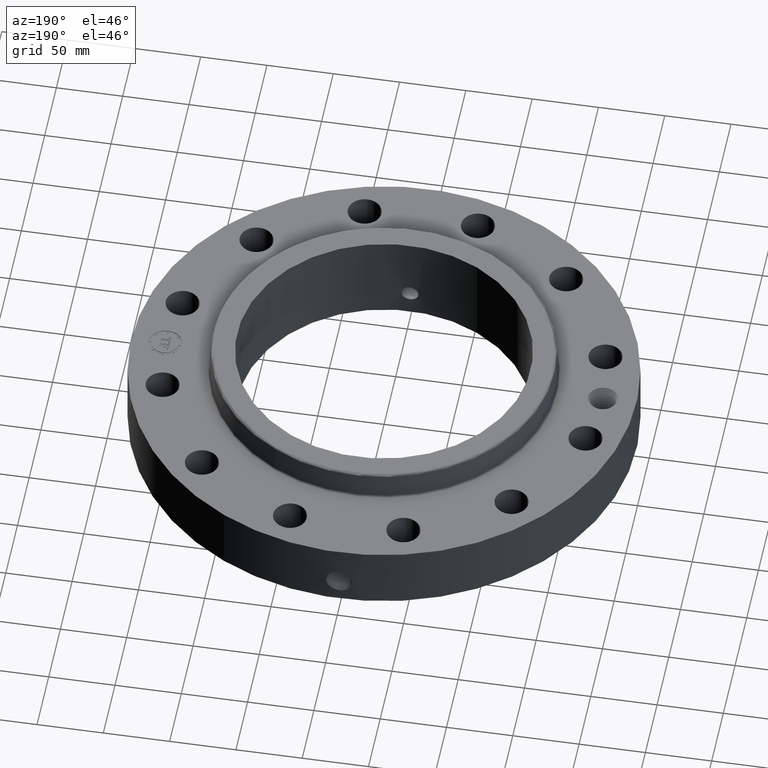
[diagram: clean part render]
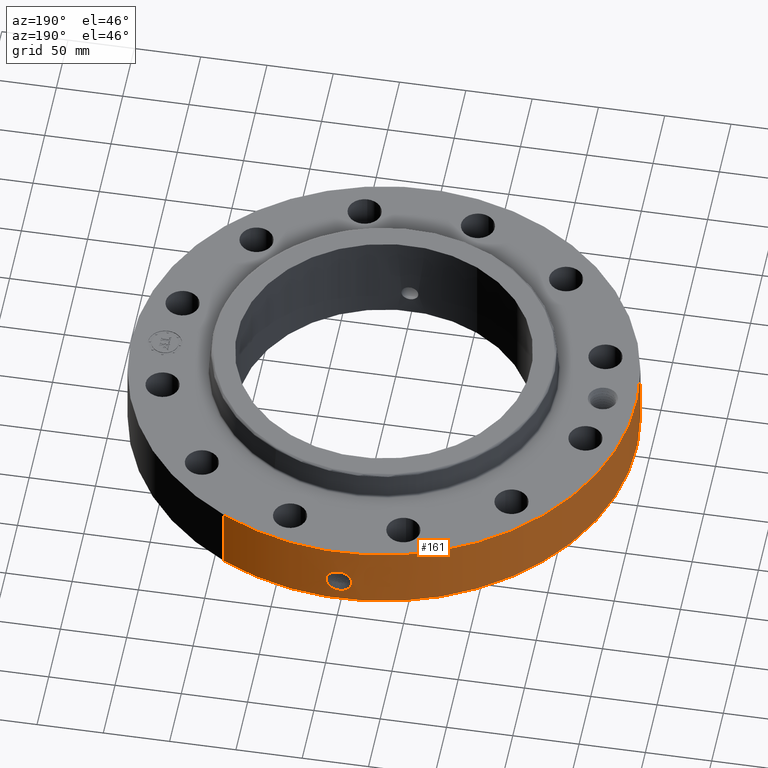
[diagram: same view with one face highlighted and labeled with its STEP entity id]
A machine part, auxiliary view. The second image highlights one B-rep face of the part: STEP entity #161.
In plain terms, the highlighted cylindrical surface (partial cylindrical patch) has radius 190.5 mm, axis along (0, 0, -1).
Its self-contained STEP definition (entity closure, byte-faithful):
#38=AXIS2_PLACEMENT_3D('Cylinder Axis2P3D',#35,#36,#37) ;
#42=AXIS2_PLACEMENT_3D('Circle Axis2P3D',#40,#41,$) ;
#58=AXIS2_PLACEMENT_3D('Circle Axis2P3D',#56,#57,$) ;
#35=CARTESIAN_POINT('Axis2P3D Location',(0.,7.99652833788E-018,1.37650000001)) ;
#40=CARTESIAN_POINT('Axis2P3D Location',(0.,7.99652833788E-018,5.59482469102E-016)) ;
#44=CARTESIAN_POINT('Vertex',(-3.59569153955,-6.5818692142,5.59482469102E-016)) ;
#46=CARTESIAN_POINT('Vertex',(3.59569153955,6.5818692142,5.59482469102E-016)) ;
#49=CARTESIAN_POINT('Line Origine',(-3.59569153955,-6.5818692142,0.966500000004)) ;
#53=CARTESIAN_POINT('Vertex',(-3.59569153955,-6.5818692142,1.93300000001)) ;
#56=CARTESIAN_POINT('Axis2P3D Location',(0.,7.99652833788E-018,1.93300000001)) ;
#60=CARTESIAN_POINT('Vertex',(3.59569153955,6.5818692142,1.93300000001)) ;
#63=CARTESIAN_POINT('Line Origine',(3.59569153955,6.5818692142,0.966500000004)) ;
#75=CARTESIAN_POINT('Control Point',(-0.0594104657596,7.49976468944,1.0990922853)) ;
#76=CARTESIAN_POINT('Control Point',(-0.0400312568265,7.49991820464,1.1023952919)) ;
#77=CARTESIAN_POINT('Control Point',(-0.0203755811889,7.49999808801,1.10407863695)) ;
#78=CARTESIAN_POINT('Control Point',(-0.000716383780173,7.49999996582,1.1041184985)) ;
#79=CARTESIAN_POINT('Vertex',(-0.0593950914335,7.49976506884,1.09909519577)) ;
#81=CARTESIAN_POINT('Vertex',(-0.00071623952085,7.49999996583,1.10411850891)) ;
#85=CARTESIAN_POINT('Control Point',(-0.0593949822323,7.49976481208,1.09909460985)) ;
#86=CARTESIAN_POINT('Control Point',(-0.0983071289921,7.49945664425,1.09408889341)) ;
#87=CARTESIAN_POINT('Control Point',(-0.136422905128,7.49884068805,1.08199894333)) ;
#88=CARTESIAN_POINT('Control Point',(-0.171383379675,7.49804159348,1.06374697693)) ;
#89=CARTESIAN_POINT('Vertex',(-0.171383379675,7.49804159348,1.06374697693)) ;
#93=CARTESIAN_POINT('Control Point',(-0.029992772153,7.4999400287,0.341113893808)) ;
#94=CARTESIAN_POINT('Control Point',(-0.0859754396391,7.49971615019,0.348246903303)) ;
#95=CARTESIAN_POINT('Control Point',(-0.140353565122,7.49897633265,0.365868386162)) ;
#96=CARTESIAN_POINT('Control Point',(-0.190340993785,7.49778994167,0.393444729048)) ;
#97=CARTESIAN_POINT('Control Point',(-0.279604077419,7.49501968231,0.46639097433)) ;
#98=CARTESIAN_POINT('Control Point',(-0.337036155741,7.49248678996,0.564528648914)) ;
#99=CARTESIAN_POINT('Control Point',(-0.356841432361,7.49151237843,0.619126431222)) ;
#100=CARTESIAN_POINT('Control Point',(-0.372324281731,7.49075487682,0.708434539871)) ;
#101=CARTESIAN_POINT('Control Point',(-0.363000444541,7.49121104759,0.796917899808)) ;
#102=CARTESIAN_POINT('Control Point',(-0.356248771046,7.4915413381,0.828863032933)) ;
#103=CARTESIAN_POINT('Control Point',(-0.331184300103,7.49272777792,0.906388909404)) ;
#104=CARTESIAN_POINT('Control Point',(-0.286591770074,7.49460191479,0.974928410927)) ;
#105=CARTESIAN_POINT('Control Point',(-0.253241586831,7.49586399114,1.01135982888)) ;
#106=CARTESIAN_POINT('Control Point',(-0.214254502861,7.49706168455,1.04136506218)) ;
#107=CARTESIAN_POINT('Control Point',(-0.171383379675,7.49804159348,1.06374697693)) ;
#108=CARTESIAN_POINT('Vertex',(-0.029992772153,7.4999400287,0.341113893808)) ;
#112=CARTESIAN_POINT('Control Point',(-0.029992772153,7.4999400287,0.341113893808)) ;
#113=CARTESIAN_POINT('Control Point',(-0.0199890293421,7.49998003435,0.340863903436)) ;
#114=CARTESIAN_POINT('Control Point',(-0.00998111337168,7.50000000366,0.340950971607)) ;
#115=CARTESIAN_POINT('Control Point',(2.72878355591E-006,7.50000000003,0.341374667804)) ;
#116=CARTESIAN_POINT('Vertex',(2.72878353764E-006,7.50000000003,0.341374667804)) ;
#120=CARTESIAN_POINT('Control Point',(0.193541975774,7.49750235105,0.395733331631)) ;
#121=CARTESIAN_POINT('Control Point',(0.149360885528,7.49864285026,0.371061430599)) ;
#122=CARTESIAN_POINT('Control Point',(0.101191729167,7.4995398925,0.353440904324)) ;
#123=CARTESIAN_POINT('Control Point',(0.0508339965838,7.49999998154,0.343531855699)) ;
#124=CARTESIAN_POINT('Control Point',(2.72878354259E-006,7.50000000003,0.341374667804)) ;
#125=CARTESIAN_POINT('Vertex',(0.193541975774,7.49750235105,0.395733331631)) ;
#129=CARTESIAN_POINT('Control Point',(0.193541975774,7.49750235105,0.395733331631)) ;
#130=CARTESIAN_POINT('Control Point',(0.222748754041,7.49674840163,0.412043176091)) ;
#131=CARTESIAN_POINT('Control Point',(0.250325991041,7.49589420272,0.43124115056)) ;
#132=CARTESIAN_POINT('Control Point',(0.275868495899,7.49498170375,0.453170412425)) ;
#133=CARTESIAN_POINT('Control Point',(0.343186211114,7.49231400116,0.524369681106)) ;
#134=CARTESIAN_POINT('Control Point',(0.386533259873,7.49008386226,0.613767589727)) ;
#135=CARTESIAN_POINT('Control Point',(0.402018377415,7.48920042012,0.67797885535)) ;
#136=CARTESIAN_POINT('Control Point',(0.403436670667,7.48917299795,0.79212679677)) ;
#137=CARTESIAN_POINT('Control Point',(0.363754548853,7.49120560472,0.896797209598)) ;
#138=CARTESIAN_POINT('Control Point',(0.339669157343,7.49238294559,0.938229060908)) ;
#139=CARTESIAN_POINT('Control Point',(0.270518816985,7.4953815108,1.02297811594)) ;
#140=CARTESIAN_POINT('Control Point',(0.177019569569,7.49821402014,1.07827174758)) ;
#141=CARTESIAN_POINT('Control Point',(0.119045042812,7.49941832227,1.09847396337)) ;
#142=CARTESIAN_POINT('Control Point',(0.0590717685718,7.50000020374,1.10705030606)) ;
#143=CARTESIAN_POINT('Control Point',(-2.58579355294E-005,7.49999999999,1.10415298433)) ;
#144=CARTESIAN_POINT('Vertex',(-2.58579355325E-005,7.49999999999,1.10415298433)) ;
#148=CARTESIAN_POINT('Control Point',(-0.00071623951039,7.49999996583,1.1041185089)) ;
#149=CARTESIAN_POINT('Control Point',(-0.000371072583562,7.49999999879,1.10413605984)) ;
#150=CARTESIAN_POINT('Control Point',(-2.58579416854E-005,7.49999999999,1.10415298433)) ;
#36=DIRECTION('Axis2P3D Direction',(0.,0.,-0.0393700787402)) ;
#37=DIRECTION('Axis2P3D XDirection',(0.0188750212049,0.0345504945626,0.)) ;
#41=DIRECTION('Axis2P3D Direction',(0.,0.,-0.0393700787402)) ;
#50=DIRECTION('Vector Direction',(0.,0.,-0.0393700787402)) ;
#57=DIRECTION('Axis2P3D Direction',(0.,0.,-0.0393700787402)) ;
#64=DIRECTION('Vector Direction',(0.,0.,-0.0393700787402)) ;
#51=VECTOR('Line Direction',#50,0.0393700787402) ;
#65=VECTOR('Line Direction',#64,0.0393700787402) ;
#69=ORIENTED_EDGE('',*,*,#48,.F.) ;
#70=ORIENTED_EDGE('',*,*,#55,.T.) ;
#71=ORIENTED_EDGE('',*,*,#62,.T.) ;
#72=ORIENTED_EDGE('',*,*,#67,.F.) ;
#153=ORIENTED_EDGE('',*,*,#83,.F.) ;
#154=ORIENTED_EDGE('',*,*,#91,.T.) ;
#155=ORIENTED_EDGE('',*,*,#110,.F.) ;
#156=ORIENTED_EDGE('',*,*,#118,.T.) ;
#157=ORIENTED_EDGE('',*,*,#127,.F.) ;
#158=ORIENTED_EDGE('',*,*,#146,.T.) ;
#159=ORIENTED_EDGE('',*,*,#151,.F.) ;
#160=FACE_BOUND('',#152,.T.) ;
#161=ADVANCED_FACE('PartBody',(#73,#160),#39,.T.) ;
#74=B_SPLINE_CURVE_WITH_KNOTS('',3,(#75,#76,#77,#78),.UNSPECIFIED.,.F.,.U.,(4,4),(4.34044685167,6.52145691702),.UNSPECIFIED.) ;
#84=B_SPLINE_CURVE_WITH_KNOTS('',3,(#85,#86,#87,#88),.UNSPECIFIED.,.F.,.U.,(4,4),(0.,4.40819749938),.UNSPECIFIED.) ;
#92=B_SPLINE_CURVE_WITH_KNOTS('',5,(#93,#94,#95,#96,#97,#98,#99,#100,#101,#102,#103,#104,#105,#106,#107),.UNSPECIFIED.,.F.,.U.,(6,3,3,3,6),(0.,9.80825177574,20.1286656953,26.1171537478,35.1265843312),.UNSPECIFIED.) ;
#111=B_SPLINE_CURVE_WITH_KNOTS('',3,(#112,#113,#114,#115),.UNSPECIFIED.,.F.,.U.,(4,4),(0.,1.0434282601),.UNSPECIFIED.) ;
#119=B_SPLINE_CURVE_WITH_KNOTS('',4,(#120,#121,#122,#123,#124),.UNSPECIFIED.,.F.,.U.,(5,5),(0.,7.08328257482),.UNSPECIFIED.) ;
#128=B_SPLINE_CURVE_WITH_KNOTS('',5,(#129,#130,#131,#132,#133,#134,#135,#136,#137,#138,#139,#140,#141,#142,#143),.UNSPECIFIED.,.F.,.U.,(6,3,3,3,6),(0.,5.85317893251,17.0650552956,25.4867114831,36.5332829147),.UNSPECIFIED.) ;
#147=B_SPLINE_CURVE_WITH_KNOTS('',2,(#148,#149,#150),.UNSPECIFIED.,.F.,.U.,(3,3),(1.05656067499,1.08237178537),.UNSPECIFIED.) ;
#43=CIRCLE('generated circle',#42,7.50000000003) ;
#59=CIRCLE('generated circle',#58,7.50000000003) ;
#39=CYLINDRICAL_SURFACE('generated cylinder',#38,7.50000000003) ;
#48=EDGE_CURVE('',#45,#47,#43,.T.) ;
#55=EDGE_CURVE('',#45,#54,#52,.F.) ;
#62=EDGE_CURVE('',#54,#61,#59,.T.) ;
#67=EDGE_CURVE('',#47,#61,#66,.F.) ;
#83=EDGE_CURVE('',#80,#82,#74,.T.) ;
#91=EDGE_CURVE('',#80,#90,#84,.T.) ;
#110=EDGE_CURVE('',#109,#90,#92,.T.) ;
#118=EDGE_CURVE('',#109,#117,#111,.T.) ;
#127=EDGE_CURVE('',#126,#117,#119,.T.) ;
#146=EDGE_CURVE('',#126,#145,#128,.T.) ;
#151=EDGE_CURVE('',#82,#145,#147,.T.) ;
#68=EDGE_LOOP('',(#69,#70,#71,#72)) ;
#152=EDGE_LOOP('',(#153,#154,#155,#156,#157,#158,#159)) ;
#73=FACE_OUTER_BOUND('',#68,.T.) ;
#52=LINE('Line',#49,#51) ;
#66=LINE('Line',#63,#65) ;
#45=VERTEX_POINT('',#44) ;
#47=VERTEX_POINT('',#46) ;
#54=VERTEX_POINT('',#53) ;
#61=VERTEX_POINT('',#60) ;
#80=VERTEX_POINT('',#79) ;
#82=VERTEX_POINT('',#81) ;
#90=VERTEX_POINT('',#89) ;
#109=VERTEX_POINT('',#108) ;
#117=VERTEX_POINT('',#116) ;
#126=VERTEX_POINT('',#125) ;
#145=VERTEX_POINT('',#144) ;